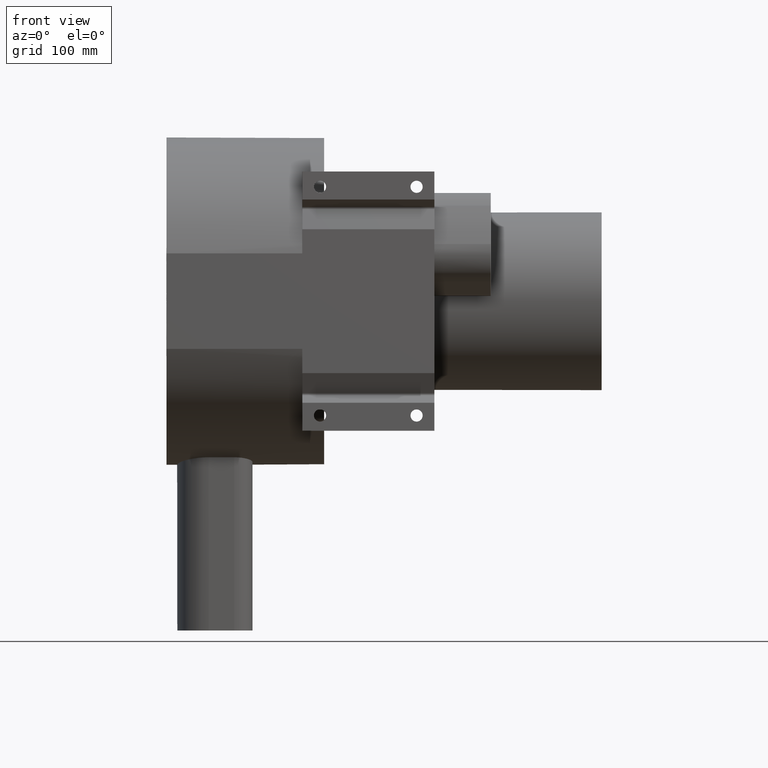
[diagram: clean part render]
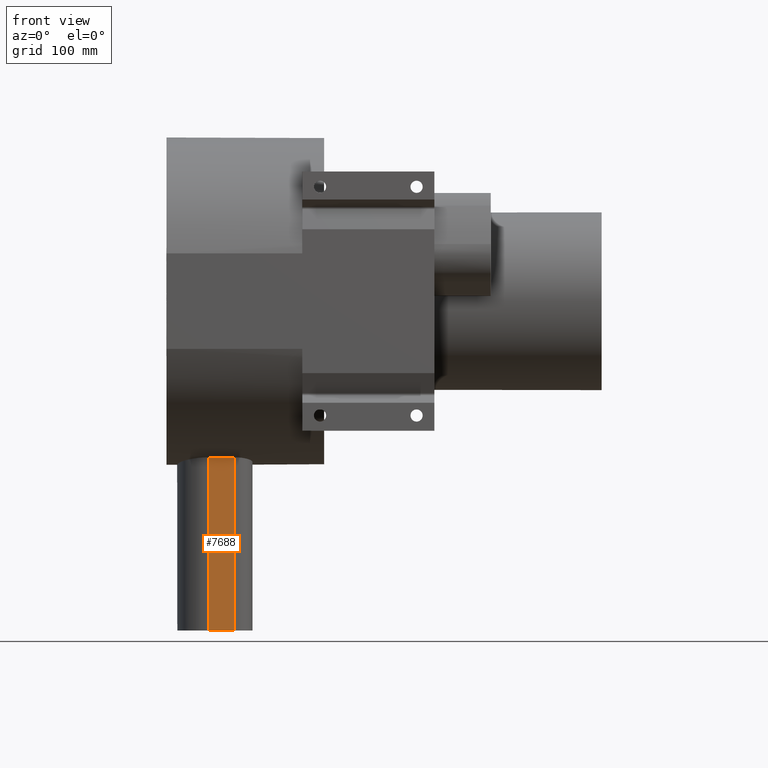
[diagram: same view with one face highlighted and labeled with its STEP entity id]
A machine part, front view. The second image highlights one B-rep face of the part: STEP entity #7688.
In plain terms, the highlighted planar face has unit normal (0, -1, 0).
Its self-contained STEP definition (entity closure, byte-faithful):
#7483=CARTESIAN_POINT('',(41.653914004497977,-48.5,-153.52117117844043));
#7484=VERTEX_POINT('',#7483);
#7514=CARTESIAN_POINT('',(41.653914004497977,-48.5,-324.0));
#7515=VERTEX_POINT('',#7514);
#7523=CARTESIAN_POINT('',(41.653914004497977,-48.5,-153.52117117844043));
#7524=DIRECTION('',(0.0,0.0,-1.0));
#7525=VECTOR('',#7524,170.47882882155957);
#7526=LINE('',#7523,#7525);
#7527=EDGE_CURVE('',#7484,#7515,#7526,.T.);
#7658=CARTESIAN_POINT('',(41.653914004497977,-48.5,0.0));
#7659=DIRECTION('',(0.0,-1.0,0.0));
#7660=DIRECTION('',(0.0,0.0,-1.0));
#7661=AXIS2_PLACEMENT_3D('',#7658,#7659,#7660);
#7662=PLANE('',#7661);
#7663=CARTESIAN_POINT('',(66.577670508479727,-48.500000000000007,-153.52117117844043));
#7664=VERTEX_POINT('',#7663);
#7665=CARTESIAN_POINT('',(41.653914004497977,-48.500000000000014,-153.52117117844043));
#7666=DIRECTION('',(1.0,0.0,0.0));
#7667=VECTOR('',#7666,24.92375650398175);
#7668=LINE('',#7665,#7667);
#7669=EDGE_CURVE('',#7484,#7664,#7668,.T.);
#7670=ORIENTED_EDGE('',*,*,#7669,.F.);
#7671=ORIENTED_EDGE('',*,*,#7527,.T.);
#7672=CARTESIAN_POINT('',(66.577670508479727,-48.500000000000007,-324.0));
#7673=VERTEX_POINT('',#7672);
#7674=CARTESIAN_POINT('',(41.653914004497977,-48.5,-324.0));
#7675=DIRECTION('',(1.0,0.0,0.0));
#7676=VECTOR('',#7675,24.92375650398175);
#7677=LINE('',#7674,#7676);
#7678=EDGE_CURVE('',#7515,#7673,#7677,.T.);
#7679=ORIENTED_EDGE('',*,*,#7678,.T.);
#7680=CARTESIAN_POINT('',(66.577670508479727,-48.500000000000007,-153.52117117844043));
#7681=DIRECTION('',(0.0,0.0,-1.0));
#7682=VECTOR('',#7681,170.47882882155957);
#7683=LINE('',#7680,#7682);
#7684=EDGE_CURVE('',#7664,#7673,#7683,.T.);
#7685=ORIENTED_EDGE('',*,*,#7684,.F.);
#7686=EDGE_LOOP('',(#7670,#7671,#7679,#7685));
#7687=FACE_OUTER_BOUND('',#7686,.T.);
#7688=ADVANCED_FACE('',(#7687),#7662,.T.);